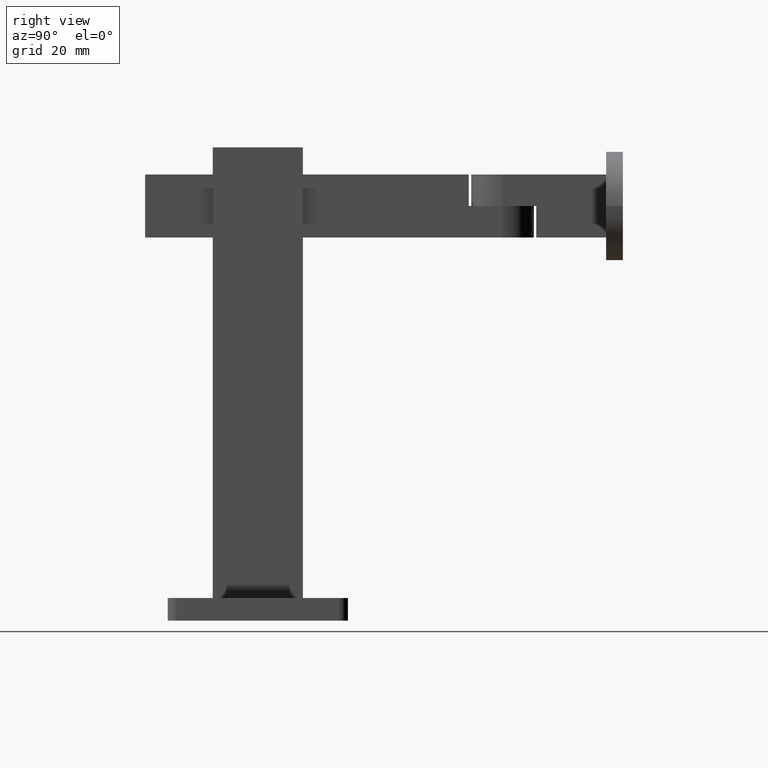
[diagram: clean part render]
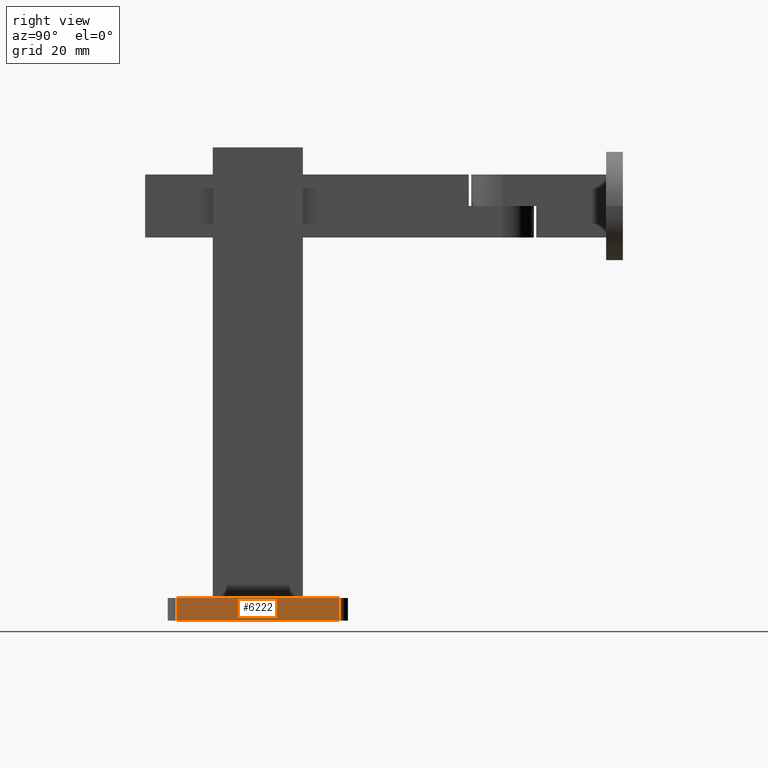
[diagram: same view with one face highlighted and labeled with its STEP entity id]
A machine part, right view. The second image highlights one B-rep face of the part: STEP entity #6222.
In plain terms, the highlighted planar face has unit normal (-1, 0, 0).
Its self-contained STEP definition (entity closure, byte-faithful):
#86 = VECTOR ( 'NONE', #21107, 1000.000000000000000 ) ;
#2578 = CARTESIAN_POINT ( 'NONE',  ( 29.99999999999999645, 20.00000000000000355, 2.500000000000000000 ) ) ;
#2868 = ORIENTED_EDGE ( 'NONE', *, *, #23269, .T. ) ;
#2985 = CARTESIAN_POINT ( 'NONE',  ( 29.99999999999999645, 18.00000000000000355, -2.500000000000000000 ) ) ;
#3242 = LINE ( 'NONE', #4814, #24631 ) ;
#3502 = VECTOR ( 'NONE', #4620, 1000.000000000000000 ) ;
#4370 = CARTESIAN_POINT ( 'NONE',  ( 29.99999999999999645, -17.99999999999999645, 2.500000000000000000 ) ) ;
#4620 = DIRECTION ( 'NONE',  ( -0.000000000000000000, -0.000000000000000000, 1.000000000000000000 ) ) ;
#4814 = CARTESIAN_POINT ( 'NONE',  ( 29.99999999999999645, 20.00000000000000355, 2.500000000000000000 ) ) ;
#5501 = CARTESIAN_POINT ( 'NONE',  ( 29.99999999999999645, -17.99999999999999645, 2.500000000000000000 ) ) ;
#6222 = ADVANCED_FACE ( 'NONE', ( #15919 ), #21621, .F. ) ;
#6803 = EDGE_CURVE ( 'NONE', #11288, #16697, #3242, .T. ) ;
#7621 = CARTESIAN_POINT ( 'NONE',  ( 29.99999999999999645, 18.00000000000000355, 2.500000000000000000 ) ) ;
#8186 = EDGE_CURVE ( 'NONE', #10625, #16697, #26274, .T. ) ;
#8871 = DIRECTION ( 'NONE',  ( -1.000000000000000000, 0.000000000000000000, 0.000000000000000000 ) ) ;
#9803 = LINE ( 'NONE', #21000, #86 ) ;
#10400 = ORIENTED_EDGE ( 'NONE', *, *, #8186, .T. ) ;
#10625 = VERTEX_POINT ( 'NONE', #2985 ) ;
#10712 = DIRECTION ( 'NONE',  ( 0.000000000000000000, 0.000000000000000000, -1.000000000000000000 ) ) ;
#11288 = VERTEX_POINT ( 'NONE', #5501 ) ;
#11746 = AXIS2_PLACEMENT_3D ( 'NONE', #2578, #8871, #23783 ) ;
#12071 = ORIENTED_EDGE ( 'NONE', *, *, #19746, .T. ) ;
#13173 = DIRECTION ( 'NONE',  ( -0.000000000000000000, 1.000000000000000000, -0.000000000000000000 ) ) ;
#15919 = FACE_OUTER_BOUND ( 'NONE', #26527, .T. ) ;
#16323 = LINE ( 'NONE', #4370, #23705 ) ;
#16697 = VERTEX_POINT ( 'NONE', #7621 ) ;
#19355 = CARTESIAN_POINT ( 'NONE',  ( 29.99999999999999645, 18.00000000000000355, 2.500000000000000000 ) ) ;
#19746 = EDGE_CURVE ( 'NONE', #20970, #10625, #9803, .T. ) ;
#20970 = VERTEX_POINT ( 'NONE', #24309 ) ;
#21000 = CARTESIAN_POINT ( 'NONE',  ( 29.99999999999999645, 20.00000000000000355, -2.500000000000000000 ) ) ;
#21107 = DIRECTION ( 'NONE',  ( -0.000000000000000000, 1.000000000000000000, -0.000000000000000000 ) ) ;
#21621 = PLANE ( 'NONE',  #11746 ) ;
#23269 = EDGE_CURVE ( 'NONE', #11288, #20970, #16323, .T. ) ;
#23705 = VECTOR ( 'NONE', #10712, 1000.000000000000000 ) ;
#23783 = DIRECTION ( 'NONE',  ( 0.000000000000000000, 0.000000000000000000, 1.000000000000000000 ) ) ;
#24309 = CARTESIAN_POINT ( 'NONE',  ( 29.99999999999999645, -17.99999999999999645, -2.500000000000000000 ) ) ;
#24631 = VECTOR ( 'NONE', #13173, 1000.000000000000000 ) ;
#26274 = LINE ( 'NONE', #19355, #3502 ) ;
#26527 = EDGE_LOOP ( 'NONE', ( #27122, #2868, #12071, #10400 ) ) ;
#27122 = ORIENTED_EDGE ( 'NONE', *, *, #6803, .F. ) ;